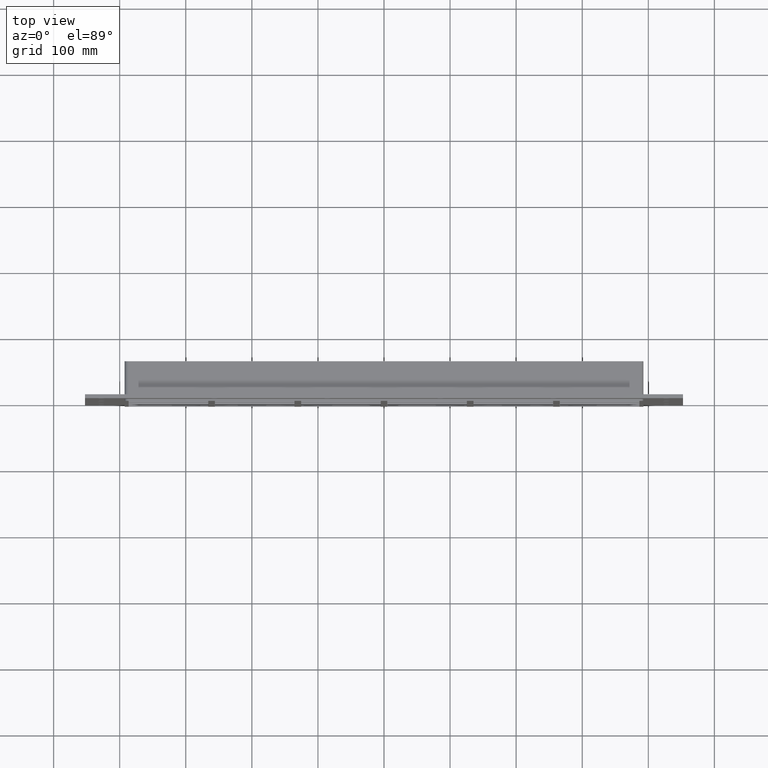
[diagram: clean part render]
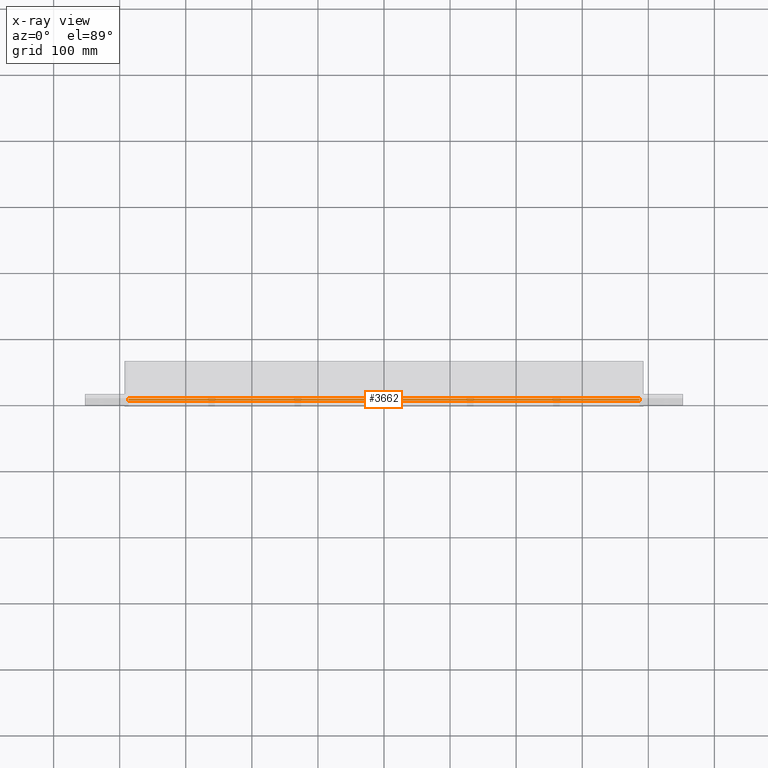
[diagram: x-ray — body ghosted, one internal face saturated and labeled with its STEP entity id]
A machine part, top view, then the same camera in x-ray: the body is ghosted and one INTERNAL B-rep face — a face not visible from any outside direction — is saturated and labeled: STEP entity #3662.
In plain terms, the highlighted planar face has unit normal (0, 0, 1).
Its self-contained STEP definition (entity closure, byte-faithful):
#2531=CARTESIAN_POINT('',(386.5,-3.0,257.25));
#2532=VERTEX_POINT('',#2531);
#2540=CARTESIAN_POINT('',(-386.50000000000006,-3.0,257.25));
#2541=VERTEX_POINT('',#2540);
#2542=CARTESIAN_POINT('',(386.49999999999994,-3.0,257.25));
#2543=DIRECTION('',(-1.0,0.0,0.0));
#2544=VECTOR('',#2543,773.0);
#2545=LINE('',#2542,#2544);
#2546=EDGE_CURVE('',#2532,#2541,#2545,.T.);
#3436=CARTESIAN_POINT('',(-386.50000000000006,0.0,257.25));
#3437=VERTEX_POINT('',#3436);
#3445=CARTESIAN_POINT('',(386.50000000000006,0.0,257.25));
#3446=VERTEX_POINT('',#3445);
#3447=CARTESIAN_POINT('',(386.5,0.0,257.25));
#3448=DIRECTION('',(-1.0,0.0,0.0));
#3449=VECTOR('',#3448,773.0);
#3450=LINE('',#3447,#3449);
#3451=EDGE_CURVE('',#3446,#3437,#3450,.T.);
#3574=CARTESIAN_POINT('',(386.50000000000006,0.0,257.25));
#3575=DIRECTION('',(0.0,-1.0,0.0));
#3576=VECTOR('',#3575,3.0);
#3577=LINE('',#3574,#3576);
#3578=EDGE_CURVE('',#3446,#2532,#3577,.T.);
#3646=CARTESIAN_POINT('',(-392.50000000000006,0.0,257.25));
#3647=DIRECTION('',(0.0,0.0,1.0));
#3648=DIRECTION('',(1.0,0.0,0.0));
#3649=AXIS2_PLACEMENT_3D('',#3646,#3647,#3648);
#3650=PLANE('',#3649);
#3651=ORIENTED_EDGE('',*,*,#3451,.T.);
#3652=CARTESIAN_POINT('',(-386.50000000000006,-3.0,257.25));
#3653=DIRECTION('',(0.0,1.0,0.0));
#3654=VECTOR('',#3653,3.0);
#3655=LINE('',#3652,#3654);
#3656=EDGE_CURVE('',#2541,#3437,#3655,.T.);
#3657=ORIENTED_EDGE('',*,*,#3656,.F.);
#3658=ORIENTED_EDGE('',*,*,#2546,.F.);
#3659=ORIENTED_EDGE('',*,*,#3578,.F.);
#3660=EDGE_LOOP('',(#3651,#3657,#3658,#3659));
#3661=FACE_OUTER_BOUND('',#3660,.T.);
#3662=ADVANCED_FACE('',(#3661),#3650,.T.);